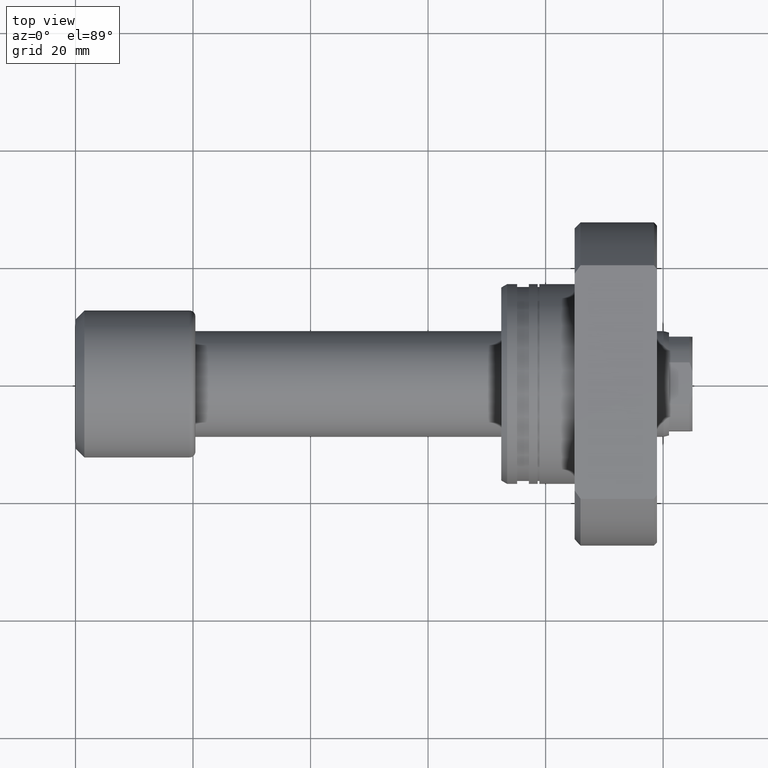
[diagram: clean part render]
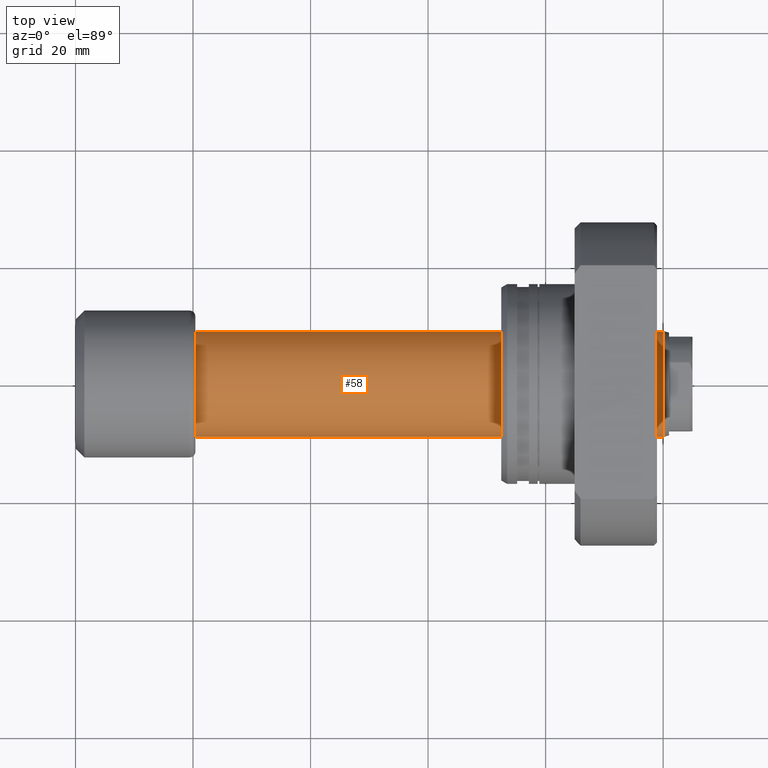
[diagram: same view with one face highlighted and labeled with its STEP entity id]
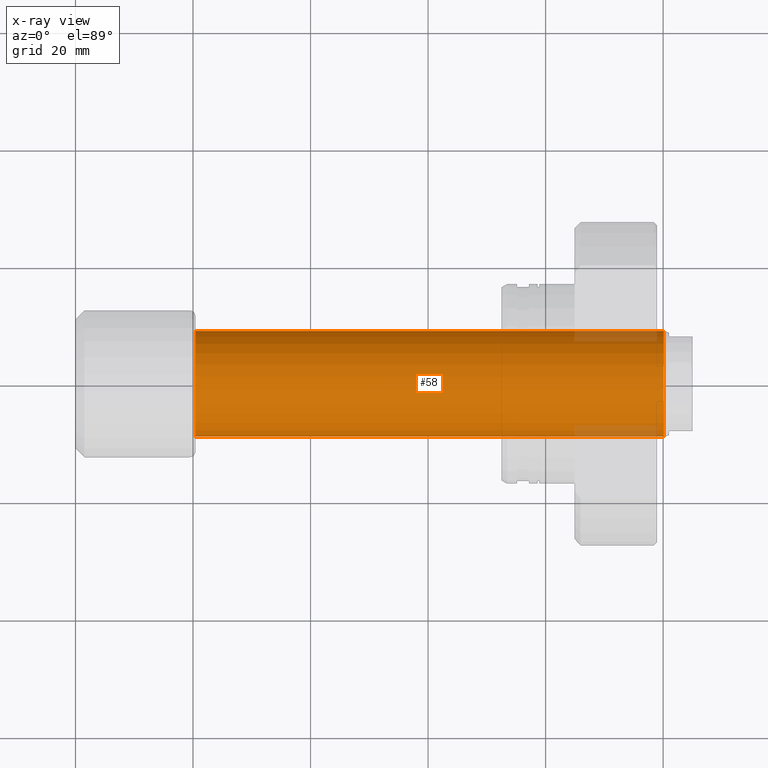
[diagram: x-ray of the same camera — body ghosted, the highlighted face saturated]
A machine part, top view. The second image highlights one B-rep face of the part: STEP entity #58.
The next image is the same camera in x-ray: the body ghosted, the highlighted face saturated — about 4% of this face is hidden behind the body in this view.
In plain terms, the highlighted cylindrical surface (partial cylindrical patch) has radius 9 mm, axis along (-1, -0, -0).
Its self-contained STEP definition (entity closure, byte-faithful):
#14 = LINE ( 'NONE', #460, #806 ) ;
#19 = EDGE_CURVE ( 'NONE', #3045, #957, #1011, .T. ) ;
#58 = ADVANCED_FACE ( 'NONE', ( #675 ), #2667, .T. ) ;
#252 = EDGE_LOOP ( 'NONE', ( #2449, #1678, #2195, #779 ) ) ;
#288 = VECTOR ( 'NONE', #412, 1000.000000000000000 ) ;
#412 = DIRECTION ( 'NONE',  ( -1.000000000000000000, -1.069542322069065801E-17, -0.000000000000000000 ) ) ;
#425 = VERTEX_POINT ( 'NONE', #3051 ) ;
#460 = CARTESIAN_POINT ( 'NONE',  ( 9.625880898621695591E-17, -9.000000000000095923, 0.000000000000000000 ) ) ;
#675 = FACE_OUTER_BOUND ( 'NONE', #252, .T. ) ;
#779 = ORIENTED_EDGE ( 'NONE', *, *, #2661, .F. ) ;
#806 = VECTOR ( 'NONE', #990, 1000.000000000000000 ) ;
#854 = CARTESIAN_POINT ( 'NONE',  ( 100.0667575123237754, 9.000000000000195399, 1.102182119232641577E-15 ) ) ;
#957 = VERTEX_POINT ( 'NONE', #1313 ) ;
#972 = CARTESIAN_POINT ( 'NONE',  ( 20.39999999999999503, 2.181866337020893623E-16, 0.000000000000000000 ) ) ;
#990 = DIRECTION ( 'NONE',  ( -1.000000000000000000, -1.069542322069065801E-17, -0.000000000000000000 ) ) ;
#1011 = LINE ( 'NONE', #2762, #288 ) ;
#1070 = CARTESIAN_POINT ( 'NONE',  ( 100.0667575123237754, 1.070256321916529121E-15, 0.000000000000000000 ) ) ;
#1117 = CIRCLE ( 'NONE', #1623, 9.000000000000193623 ) ;
#1273 = EDGE_CURVE ( 'NONE', #425, #957, #1941, .T. ) ;
#1284 = AXIS2_PLACEMENT_3D ( 'NONE', #2454, #1429, #2972 ) ;
#1313 = CARTESIAN_POINT ( 'NONE',  ( 20.39999999999999503, 9.000000000000000000, 1.102182119232623630E-15 ) ) ;
#1364 = CARTESIAN_POINT ( 'NONE',  ( 100.0667575123237754, -9.000000000000191847, 0.000000000000000000 ) ) ;
#1429 = DIRECTION ( 'NONE',  ( -1.000000000000000000, -1.069542322069065801E-17, -0.000000000000000000 ) ) ;
#1468 = EDGE_CURVE ( 'NONE', #2965, #3045, #1117, .T. ) ;
#1623 = AXIS2_PLACEMENT_3D ( 'NONE', #1070, #2061, #3066 ) ;
#1678 = ORIENTED_EDGE ( 'NONE', *, *, #19, .T. ) ;
#1685 = DIRECTION ( 'NONE',  ( 0.000000000000000000, -1.000000000000000000, 0.000000000000000000 ) ) ;
#1740 = DIRECTION ( 'NONE',  ( -1.000000000000000000, -1.069542322069065801E-17, -0.000000000000000000 ) ) ;
#1941 = CIRCLE ( 'NONE', #2833, 9.000000000000000000 ) ;
#2061 = DIRECTION ( 'NONE',  ( -1.000000000000000000, -1.069542322069065801E-17, -0.000000000000000000 ) ) ;
#2195 = ORIENTED_EDGE ( 'NONE', *, *, #1273, .F. ) ;
#2449 = ORIENTED_EDGE ( 'NONE', *, *, #1468, .T. ) ;
#2454 = CARTESIAN_POINT ( 'NONE',  ( 0.000000000000000000, 0.000000000000000000, 0.000000000000000000 ) ) ;
#2661 = EDGE_CURVE ( 'NONE', #2965, #425, #14, .T. ) ;
#2667 = CYLINDRICAL_SURFACE ( 'NONE', #1284, 9.000000000000095923 ) ;
#2762 = CARTESIAN_POINT ( 'NONE',  ( -9.625880898621695591E-17, 9.000000000000095923, 1.102182119232629744E-15 ) ) ;
#2833 = AXIS2_PLACEMENT_3D ( 'NONE', #972, #1740, #1685 ) ;
#2965 = VERTEX_POINT ( 'NONE', #1364 ) ;
#2972 = DIRECTION ( 'NONE',  ( 1.069542322069065955E-17, -1.000000000000000000, 0.000000000000000000 ) ) ;
#3045 = VERTEX_POINT ( 'NONE', #854 ) ;
#3051 = CARTESIAN_POINT ( 'NONE',  ( 20.39999999999999503, -9.000000000000000000, 0.000000000000000000 ) ) ;
#3066 = DIRECTION ( 'NONE',  ( 0.000000000000000000, -1.000000000000000000, 0.000000000000000000 ) ) ;